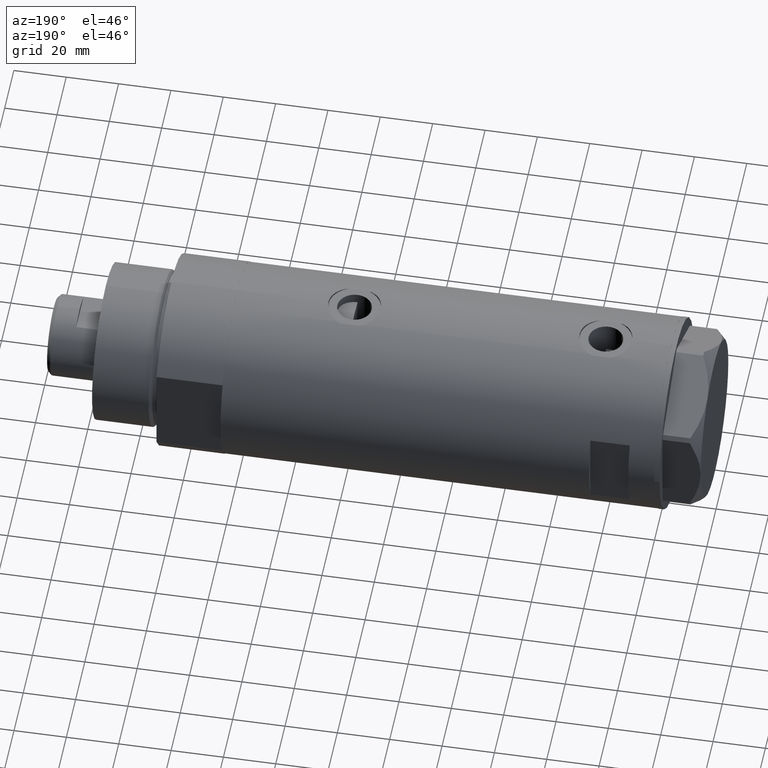
[diagram: clean part render]
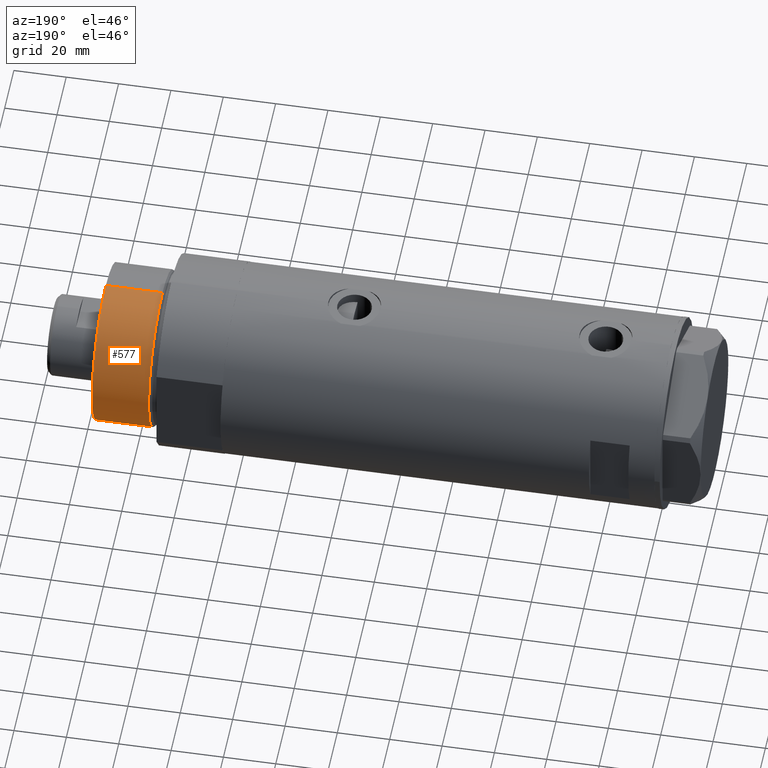
[diagram: same view with one face highlighted and labeled with its STEP entity id]
A machine part, auxiliary view. The second image highlights one B-rep face of the part: STEP entity #577.
In plain terms, the highlighted cylindrical surface (partial cylindrical patch) has radius 30 mm, axis along (-1, -0, 0).
Its self-contained STEP definition (entity closure, byte-faithful):
#20 = VERTEX_POINT ( 'NONE', #1805 ) ;
#72 = DIRECTION ( 'NONE',  ( -0.000000000000000000, -0.000000000000000000, 1.000000000000000000 ) ) ;
#137 = FACE_OUTER_BOUND ( 'NONE', #4385, .T. ) ;
#301 = CARTESIAN_POINT ( 'NONE',  ( 0.000000000000000000, 0.000000000000000000, 50.19999999999999574 ) ) ;
#309 = VERTEX_POINT ( 'NONE', #4471 ) ;
#577 = ADVANCED_FACE ( 'NONE', ( #137 ), #3612, .T. ) ;
#842 = DIRECTION ( 'NONE',  ( -1.000000000000000000, 0.000000000000000000, 0.000000000000000000 ) ) ;
#980 = DIRECTION ( 'NONE',  ( 1.000000000000000000, 0.000000000000000000, 0.000000000000000000 ) ) ;
#1142 = EDGE_CURVE ( 'NONE', #309, #2948, #2291, .T. ) ;
#1205 = DIRECTION ( 'NONE',  ( -0.000000000000000000, -0.000000000000000000, -1.000000000000000000 ) ) ;
#1286 = AXIS2_PLACEMENT_3D ( 'NONE', #2898, #1903, #842 ) ;
#1352 = EDGE_CURVE ( 'NONE', #1524, #2948, #3028, .T. ) ;
#1363 = ORIENTED_EDGE ( 'NONE', *, *, #1544, .F. ) ;
#1437 = VECTOR ( 'NONE', #3223, 1000.000000000000000 ) ;
#1524 = VERTEX_POINT ( 'NONE', #2415 ) ;
#1544 = EDGE_CURVE ( 'NONE', #20, #309, #3690, .T. ) ;
#1726 = ORIENTED_EDGE ( 'NONE', *, *, #1352, .T. ) ;
#1805 = CARTESIAN_POINT ( 'NONE',  ( 30.00000000000000000, 3.673940397442058389E-15, 50.19999999999999574 ) ) ;
#1846 = CARTESIAN_POINT ( 'NONE',  ( 30.00000000000000000, 3.673940397442058389E-15, 50.19999999999999574 ) ) ;
#1903 = DIRECTION ( 'NONE',  ( -0.000000000000000000, -0.000000000000000000, -1.000000000000000000 ) ) ;
#2072 = CARTESIAN_POINT ( 'NONE',  ( -30.00000000000000000, 0.000000000000000000, 28.57384048104054486 ) ) ;
#2203 = CARTESIAN_POINT ( 'NONE',  ( 0.000000000000000000, 0.000000000000000000, 28.57384048104054486 ) ) ;
#2291 = LINE ( 'NONE', #3711, #4043 ) ;
#2415 = CARTESIAN_POINT ( 'NONE',  ( 30.00000000000000000, 3.673940397442058389E-15, 28.57384048104054486 ) ) ;
#2490 = ORIENTED_EDGE ( 'NONE', *, *, #1142, .F. ) ;
#2898 = CARTESIAN_POINT ( 'NONE',  ( 0.000000000000000000, 0.000000000000000000, 50.19999999999999574 ) ) ;
#2948 = VERTEX_POINT ( 'NONE', #2072 ) ;
#3028 = CIRCLE ( 'NONE', #3767, 30.00000000000000000 ) ;
#3118 = DIRECTION ( 'NONE',  ( 1.000000000000000000, 0.000000000000000000, 0.000000000000000000 ) ) ;
#3223 = DIRECTION ( 'NONE',  ( -0.000000000000000000, -0.000000000000000000, -1.000000000000000000 ) ) ;
#3474 = EDGE_CURVE ( 'NONE', #20, #1524, #4372, .T. ) ;
#3544 = AXIS2_PLACEMENT_3D ( 'NONE', #301, #4091, #980 ) ;
#3612 = CYLINDRICAL_SURFACE ( 'NONE', #1286, 30.00000000000000000 ) ;
#3690 = CIRCLE ( 'NONE', #3544, 30.00000000000000000 ) ;
#3711 = CARTESIAN_POINT ( 'NONE',  ( -30.00000000000000000, 0.000000000000000000, 50.19999999999999574 ) ) ;
#3767 = AXIS2_PLACEMENT_3D ( 'NONE', #2203, #72, #3118 ) ;
#4043 = VECTOR ( 'NONE', #1205, 1000.000000000000000 ) ;
#4091 = DIRECTION ( 'NONE',  ( 0.000000000000000000, 0.000000000000000000, 1.000000000000000000 ) ) ;
#4222 = ORIENTED_EDGE ( 'NONE', *, *, #3474, .T. ) ;
#4372 = LINE ( 'NONE', #1846, #1437 ) ;
#4385 = EDGE_LOOP ( 'NONE', ( #1363, #4222, #1726, #2490 ) ) ;
#4471 = CARTESIAN_POINT ( 'NONE',  ( -30.00000000000000000, 0.000000000000000000, 50.19999999999999574 ) ) ;